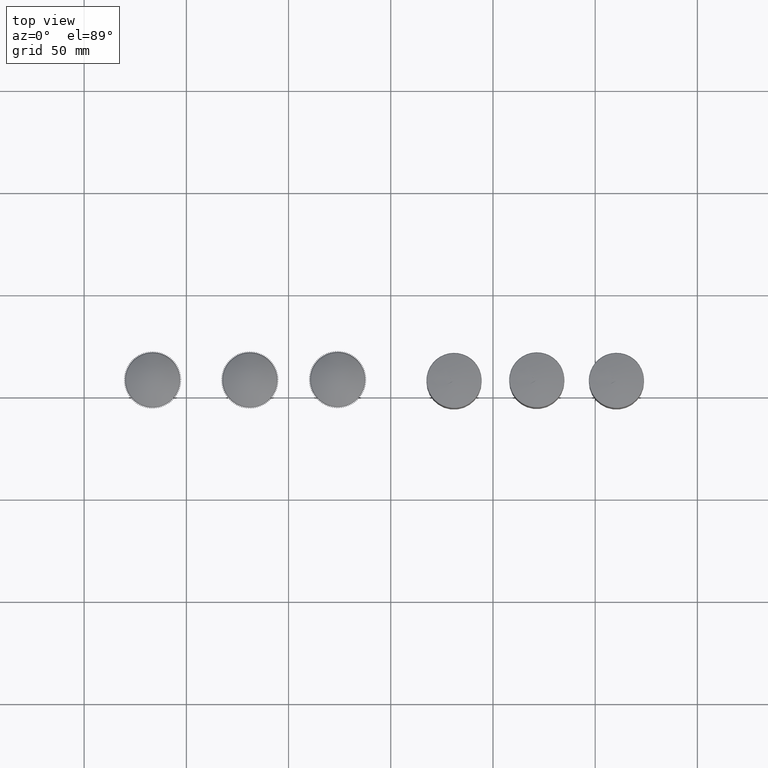
[diagram: clean part render]
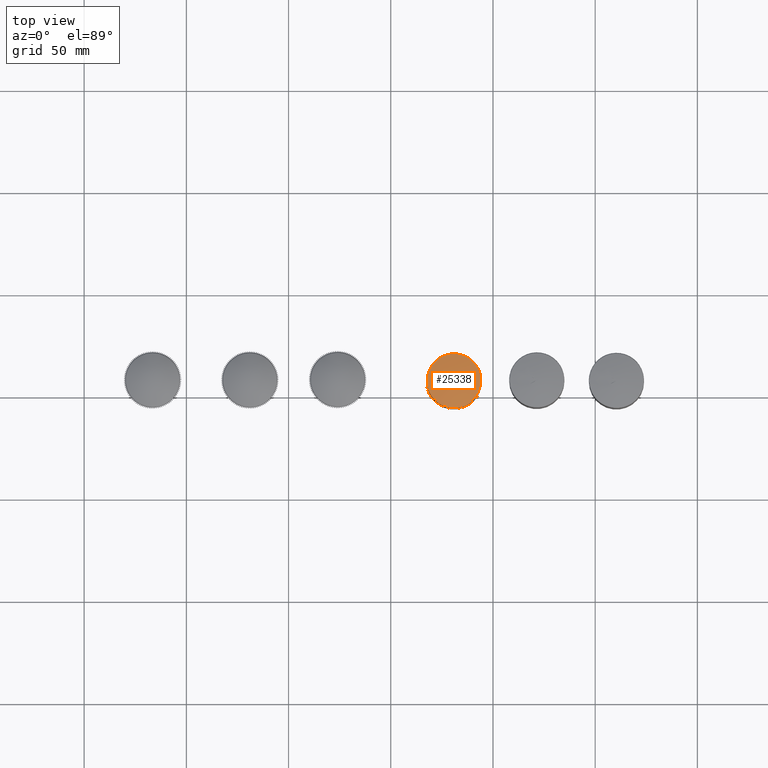
[diagram: same view with one face highlighted and labeled with its STEP entity id]
A machine part, top view. The second image highlights one B-rep face of the part: STEP entity #25338.
In plain terms, the highlighted face is a freeform B-spline surface patch.
Its self-contained STEP definition (entity closure, byte-faithful):
#12=B_SPLINE_CURVE_WITH_KNOTS('',3,(#43362,#43363,#43364,#43365,#43366,
#43367,#43368,#43369,#43370,#43371,#43372,#43373,#43374,#43375,#43376),
 .UNSPECIFIED.,.T.,.F.,(4,1,1,1,1,1,1,1,1,1,1,1,4),(-3.14159265358979,-2.61798857269569,
-2.09438449180158,-1.57078041090747,-1.04718252350829,-0.52358463610911,
1.32512900696824E-5,0.523610297890524,1.04720734449098,1.57080439109143,
2.09440047859089,2.61799656609034,3.14159265358979),.UNSPECIFIED.);
#13=B_SPLINE_CURVE_WITH_KNOTS('',3,(#43442,#43443,#43444,#43445),
 .UNSPECIFIED.,.F.,.F.,(4,4),(0.029226805038755,1.),.UNSPECIFIED.);
#21=B_SPLINE_SURFACE_WITH_KNOTS('',3,3,((#43377,#43378,#43379,#43380),(#43381,
#43382,#43383,#43384),(#43385,#43386,#43387,#43388),(#43389,#43390,#43391,
#43392),(#43393,#43394,#43395,#43396),(#43397,#43398,#43399,#43400),(#43401,
#43402,#43403,#43404),(#43405,#43406,#43407,#43408),(#43409,#43410,#43411,
#43412),(#43413,#43414,#43415,#43416),(#43417,#43418,#43419,#43420),(#43421,
#43422,#43423,#43424),(#43425,#43426,#43427,#43428),(#43429,#43430,#43431,
#43432),(#43433,#43434,#43435,#43436),(#43437,#43438,#43439,#43440)),
 .UNSPECIFIED.,.T.,.F.,.F.,(4,1,1,1,1,1,1,1,1,1,1,1,1,4),(4,4),(0.,0.0833333333333333,
0.166666666666667,0.208333333333333,0.25,0.333333333333333,0.416666666666667,
0.5,0.583333333333333,0.666666666666667,0.75,0.833333333333333,0.916666666666667,
1.),(0.0292268050387549,1.),.UNSPECIFIED.);
#2205=FACE_OUTER_BOUND('',#3584,.T.);
#3584=EDGE_LOOP('',(#23339,#23340,#23341));
#12239=VERTEX_POINT('',#43344);
#12241=VERTEX_POINT('',#43441);
#15955=EDGE_CURVE('',#12239,#12239,#12,.T.);
#15956=EDGE_CURVE('',#12239,#12241,#13,.T.);
#23339=ORIENTED_EDGE('',*,*,#15955,.F.);
#23340=ORIENTED_EDGE('',*,*,#15956,.T.);
#23341=ORIENTED_EDGE('',*,*,#15956,.F.);
#25338=ADVANCED_FACE('',(#2205),#21,.T.);
#43344=CARTESIAN_POINT('',(-13.1054381319768,7.55568986201955E-16,-83.5863991059171));
#43362=CARTESIAN_POINT('Ctrl Pts',(-13.1061094515947,5.18787761389673E-6,
-83.5863974388867));
#43363=CARTESIAN_POINT('Ctrl Pts',(-13.10610394127,-2.28702505955321,-83.5863974388801));
#43364=CARTESIAN_POINT('Ctrl Pts',(-11.8806867805833,-6.85842965303027,
-83.5864171428109));
#43365=CARTESIAN_POINT('Ctrl Pts',(-6.86090497644658,-11.8831506069448,
-83.5864193179682));
#43366=CARTESIAN_POINT('Ctrl Pts',(-0.000104517863047428,-13.7189119567638,
-83.5863865895902));
#43367=CARTESIAN_POINT('Ctrl Pts',(6.86104658201099,-11.8828891431679,-83.5864192378759));
#43368=CARTESIAN_POINT('Ctrl Pts',(11.8804903942591,-6.85909126662176,-83.5864171463776));
#43369=CARTESIAN_POINT('Ctrl Pts',(13.7191765640483,-6.03629638527097E-5,
-83.5863869919124));
#43370=CARTESIAN_POINT('Ctrl Pts',(11.8805136739181,6.85915752642451,-83.5864171466426));
#43371=CARTESIAN_POINT('Ctrl Pts',(6.86095888801736,11.8828702984381,-83.5864192376562));
#43372=CARTESIAN_POINT('Ctrl Pts',(3.22227347107819E-5,13.7189600164893,
-83.5863865897952));
#43373=CARTESIAN_POINT('Ctrl Pts',(-6.86097226016311,11.8830508354376,-83.5864193174758));
#43374=CARTESIAN_POINT('Ctrl Pts',(-11.8804802062639,6.85873127608589,-83.5864171437127));
#43375=CARTESIAN_POINT('Ctrl Pts',(-13.1061149618352,2.28700052126551,-83.5863974388934));
#43376=CARTESIAN_POINT('Ctrl Pts',(-13.1061094515947,5.1878776140774E-6,
-83.5863974388867));
#43377=CARTESIAN_POINT('Ctrl Pts',(-13.1063883986704,-0.00104752898900461,
-83.5863991059158));
#43378=CARTESIAN_POINT('Ctrl Pts',(-8.7375808510048,-0.00102740271344166,
-84.5287997019711));
#43379=CARTESIAN_POINT('Ctrl Pts',(-4.36881754693433,-1.94826534013467E-5,
-84.9999999999987));
#43380=CARTESIAN_POINT('Ctrl Pts',(0.,0.,-84.9999999999987));
#43381=CARTESIAN_POINT('Ctrl Pts',(-13.1060746790216,2.28580218860182,-83.5863991059158));
#43382=CARTESIAN_POINT('Ctrl Pts',(-8.73723473076264,1.52376831341233,-84.5287997019711));
#43383=CARTESIAN_POINT('Ctrl Pts',(-4.36885471660124,0.761999004938996,
-84.9999999999987));
#43384=CARTESIAN_POINT('Ctrl Pts',(0.,0.,-84.9999999999987));
#43385=CARTESIAN_POINT('Ctrl Pts',(-11.8808347638176,6.8591179200909,-83.5863991059165));
#43386=CARTESIAN_POINT('Ctrl Pts',(-7.92095704391823,4.57281913084789,-84.5287997019718));
#43387=CARTESIAN_POINT('Ctrl Pts',(-3.95971323955837,2.28618790329197,-84.9999999999994));
#43388=CARTESIAN_POINT('Ctrl Pts',(0.,0.,-84.9999999999994));
#43389=CARTESIAN_POINT('Ctrl Pts',(-7.69769159945877,11.0439548718737,-83.5863991059166));
#43390=CARTESIAN_POINT('Ctrl Pts',(-5.13324392860461,7.36368605897188,-84.5287997019719));
#43391=CARTESIAN_POINT('Ctrl Pts',(-2.56426192860756,3.68006830094365,-84.9999999999995));
#43392=CARTESIAN_POINT('Ctrl Pts',(0.,0.,-84.9999999999995));
#43393=CARTESIAN_POINT('Ctrl Pts',(-3.43135397076761,12.8033314653696,-83.5863991059168));
#43394=CARTESIAN_POINT('Ctrl Pts',(-2.28790590439524,8.53629944451769,-84.528799701972));
#43395=CARTESIAN_POINT('Ctrl Pts',(-1.14346144620654,4.26701558088454,-84.9999999999997));
#43396=CARTESIAN_POINT('Ctrl Pts',(0.,0.,-84.9999999999997));
#43397=CARTESIAN_POINT('Ctrl Pts',(1.14246745854396,13.4113377832231,-83.5863991059168));
#43398=CARTESIAN_POINT('Ctrl Pts',(0.7612034954097,8.94030353609444,-84.5287997019721));
#43399=CARTESIAN_POINT('Ctrl Pts',(0.381304963232998,4.47108867814306,-84.9999999999997));
#43400=CARTESIAN_POINT('Ctrl Pts',(0.,0.,-84.9999999999997));
#43401=CARTESIAN_POINT('Ctrl Pts',(6.85908524824394,11.8812781234301,-83.586399105917));
#43402=CARTESIAN_POINT('Ctrl Pts',(4.57311117163427,7.92162165280566,-84.5287997019722));
#43403=CARTESIAN_POINT('Ctrl Pts',(2.28582773806094,3.95945777216786,-84.9999999999999));
#43404=CARTESIAN_POINT('Ctrl Pts',(0.,0.,-84.9999999999999));
#43405=CARTESIAN_POINT('Ctrl Pts',(11.8829199003254,6.86132457519713,-83.586399105917));
#43406=CARTESIAN_POINT('Ctrl Pts',(7.92339222841465,4.57539604179708,-84.5287997019722));
#43407=CARTESIAN_POINT('Ctrl Pts',(3.95933871454555,2.2858200876644,-84.9999999999999));
#43408=CARTESIAN_POINT('Ctrl Pts',(0.,0.,-84.9999999999999));
#43409=CARTESIAN_POINT('Ctrl Pts',(13.7212847337259,-0.000268670247869946,
-83.586399105917));
#43410=CARTESIAN_POINT('Ctrl Pts',(9.14747342276187,-0.000360639139560335,
-84.5287997019723));
#43411=CARTESIAN_POINT('Ctrl Pts',(4.57393814736032,8.92402956147988E-5,
-84.9999999999999));
#43412=CARTESIAN_POINT('Ctrl Pts',(0.,0.,-84.9999999999999));
#43413=CARTESIAN_POINT('Ctrl Pts',(11.8810598215813,-6.85971546528806,-83.586399105917));
#43414=CARTESIAN_POINT('Ctrl Pts',(7.92152464020572,-4.57359997296515,-84.5287997019723));
#43415=CARTESIAN_POINT('Ctrl Pts',(3.95934007763225,-2.28600917052072,-84.9999999999999));
#43416=CARTESIAN_POINT('Ctrl Pts',(0.,0.,-84.9999999999999));
#43417=CARTESIAN_POINT('Ctrl Pts',(6.86066202881256,-11.8814259279586,-83.586399105917));
#43418=CARTESIAN_POINT('Ctrl Pts',(4.57461153406401,-7.92200747974908,-84.5287997019722));
#43419=CARTESIAN_POINT('Ctrl Pts',(2.2859291063561,-3.95920466555057,-84.9999999999998));
#43420=CARTESIAN_POINT('Ctrl Pts',(0.,0.,-84.9999999999998));
#43421=CARTESIAN_POINT('Ctrl Pts',(-0.000417808085343327,-13.7182429166523,
-83.5863991059169));
#43422=CARTESIAN_POINT('Ctrl Pts',(-0.00040045752315301,-9.14439393829187,
-84.5287997019722));
#43423=CARTESIAN_POINT('Ctrl Pts',(-1.66752629134414E-5,-4.57398882145809,
-84.9999999999998));
#43424=CARTESIAN_POINT('Ctrl Pts',(0.,0.,-84.9999999999998));
#43425=CARTESIAN_POINT('Ctrl Pts',(-6.858670098658,-11.880742903331,-83.5863991059166));
#43426=CARTESIAN_POINT('Ctrl Pts',(-4.57267130288301,-7.92129337012716,
-84.5287997019719));
#43427=CARTESIAN_POINT('Ctrl Pts',(-2.28587846667191,-3.95923743906894,
-84.9999999999995));
#43428=CARTESIAN_POINT('Ctrl Pts',(0.,0.,-84.9999999999995));
#43429=CARTESIAN_POINT('Ctrl Pts',(-11.8827170817108,-6.86198038545406,
-83.5863991059165));
#43430=CARTESIAN_POINT('Ctrl Pts',(-7.9230337653712,-4.57595516590674,-84.5287997019718));
#43431=CARTESIAN_POINT('Ctrl Pts',(-3.95949022155692,-2.28592302226242,
-84.9999999999994));
#43432=CARTESIAN_POINT('Ctrl Pts',(0.,0.,-84.9999999999994));
#43433=CARTESIAN_POINT('Ctrl Pts',(-13.1067021183193,-2.28789724657983,
-83.5863991059158));
#43434=CARTESIAN_POINT('Ctrl Pts',(-8.73792697124696,-1.52582311883922,
-84.5287997019711));
#43435=CARTESIAN_POINT('Ctrl Pts',(-4.36878037726743,-0.762037970245799,
-84.9999999999987));
#43436=CARTESIAN_POINT('Ctrl Pts',(0.,0.,-84.9999999999987));
#43437=CARTESIAN_POINT('Ctrl Pts',(-13.1063883986704,-0.00104752898900461,
-83.5863991059158));
#43438=CARTESIAN_POINT('Ctrl Pts',(-8.7375808510048,-0.00102740271344166,
-84.5287997019711));
#43439=CARTESIAN_POINT('Ctrl Pts',(-4.36881754693433,-1.94826534013467E-5,
-84.9999999999987));
#43440=CARTESIAN_POINT('Ctrl Pts',(0.,0.,-84.9999999999987));
#43441=CARTESIAN_POINT('',(0.,0.,-85.));
#43442=CARTESIAN_POINT('Ctrl Pts',(-13.1054381319768,1.51113797240391E-15,
-83.5863991059171));
#43443=CARTESIAN_POINT('Ctrl Pts',(-8.73695875465121,-3.12717711903316E-17,
-84.5287997019724));
#43444=CARTESIAN_POINT('Ctrl Pts',(-4.3684793773256,-5.34984428658302E-16,
-85.));
#43445=CARTESIAN_POINT('Ctrl Pts',(0.,0.,-85.));